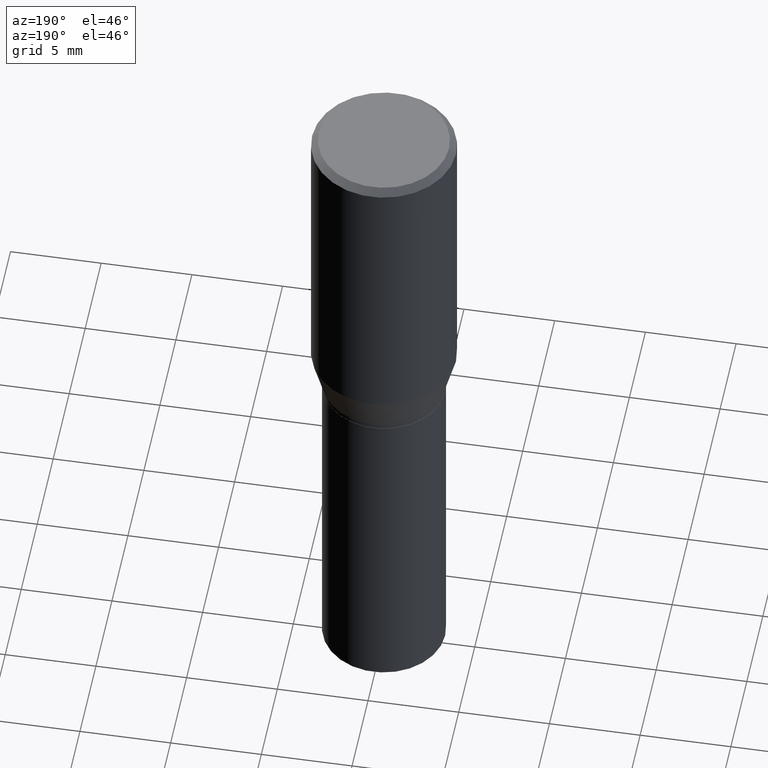
[diagram: clean part render]
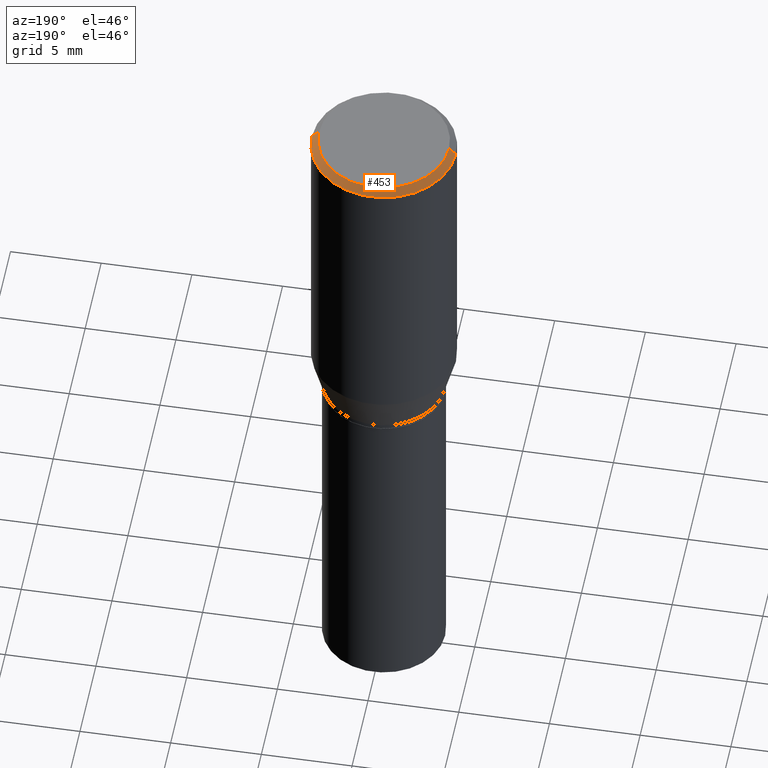
[diagram: same view with one face highlighted and labeled with its STEP entity id]
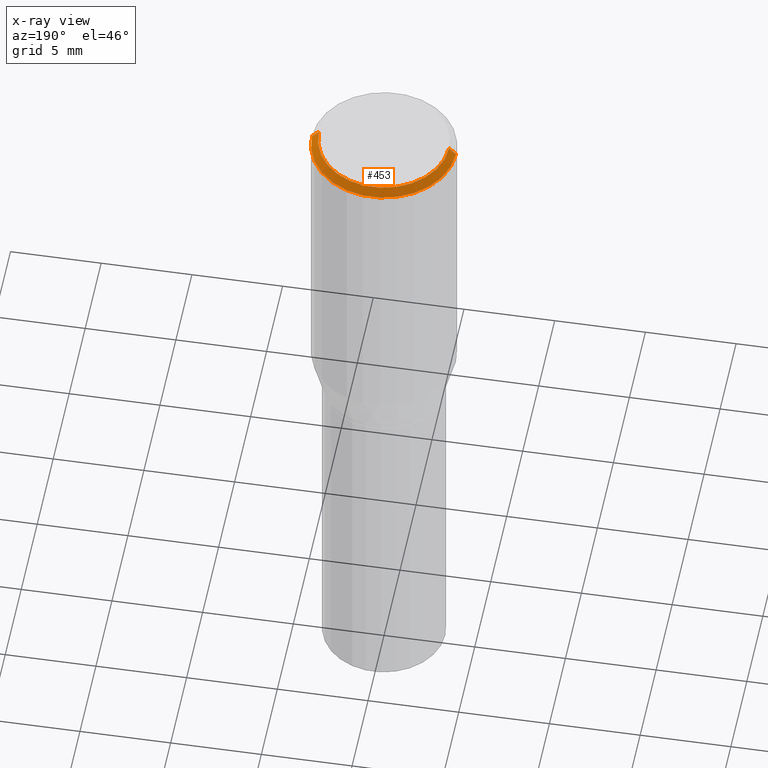
[diagram: x-ray of the same camera — body ghosted, the highlighted face saturated]
A machine part, auxiliary view. The second image highlights one B-rep face of the part: STEP entity #453.
The next image is the same camera in x-ray: the body ghosted, the highlighted face saturated — about 0% of this face is hidden behind the body in this view.
In plain terms, the highlighted conical surface has half-angle 45 deg.
Its self-contained STEP definition (entity closure, byte-faithful):
#4 = LINE ( 'NONE', #144, #257 ) ;
#24 = AXIS2_PLACEMENT_3D ( 'NONE', #143, #388, #175 ) ;
#58 = ORIENTED_EDGE ( 'NONE', *, *, #397, .F. ) ;
#60 = ORIENTED_EDGE ( 'NONE', *, *, #464, .T. ) ;
#67 = DIRECTION ( 'NONE',  ( -2.445468806185136597E-29, 3.491481338843145583E-15, 1.000000000000000000 ) ) ;
#79 = CARTESIAN_POINT ( 'NONE',  ( -0.1562500000000000000, 1.038715698305832094E-15, -0.01499999999999999944 ) ) ;
#91 = VERTEX_POINT ( 'NONE', #203 ) ;
#97 = FACE_OUTER_BOUND ( 'NONE', #342, .T. ) ;
#99 = CARTESIAN_POINT ( 'NONE',  ( 3.668203209277705088E-31, -5.237222008264718399E-17, -0.01499999999999999944 ) ) ;
#108 = DIRECTION ( 'NONE',  ( 0.7071067811865483499, -7.319954787623257623E-15, -0.7071067811865466846 ) ) ;
#113 = DIRECTION ( 'NONE',  ( -0.7071067811865483499, 2.468850131082265738E-15, -0.7071067811865466846 ) ) ;
#142 = EDGE_CURVE ( 'NONE', #91, #234, #4, .T. ) ;
#143 = CARTESIAN_POINT ( 'NONE',  ( 1.066899386337773103E-45, -1.523249566054587316E-31, -4.362760153142606033E-17 ) ) ;
#144 = CARTESIAN_POINT ( 'NONE',  ( 0.1562500000000000000, -1.124325032234449083E-15, -0.01499999999999999944 ) ) ;
#157 = CIRCLE ( 'NONE', #24, 0.1412500000000000144 ) ;
#163 = ORIENTED_EDGE ( 'NONE', *, *, #142, .T. ) ;
#167 = VECTOR ( 'NONE', #113, 39.37007874015748143 ) ;
#169 = CONICAL_SURFACE ( 'NONE', #311, 0.1562500000000000000, 0.7853981633974495002 ) ;
#175 = DIRECTION ( 'NONE',  ( 1.000000000000000000, -6.982962677686265922E-15, 4.874209154772796007E-29 ) ) ;
#203 = CARTESIAN_POINT ( 'NONE',  ( 0.1412500000000000144, -1.046685187209839144E-15, -4.362760153141894826E-17 ) ) ;
#218 = CARTESIAN_POINT ( 'NONE',  ( -0.1562500000000000000, -5.502990786655347834E-17, -0.01499999999999999944 ) ) ;
#226 = AXIS2_PLACEMENT_3D ( 'NONE', #99, #67, #354 ) ;
#231 = EDGE_CURVE ( 'NONE', #381, #232, #440, .T. ) ;
#232 = VERTEX_POINT ( 'NONE', #218 ) ;
#234 = VERTEX_POINT ( 'NONE', #252 ) ;
#236 = DIRECTION ( 'NONE',  ( 2.445468806185136597E-29, -3.491481338843145583E-15, -1.000000000000000000 ) ) ;
#252 = CARTESIAN_POINT ( 'NONE',  ( 0.1562500000000000000, -1.143460138471126253E-15, -0.01499999999999999944 ) ) ;
#257 = VECTOR ( 'NONE', #108, 39.37007874015748143 ) ;
#311 = AXIS2_PLACEMENT_3D ( 'NONE', #358, #236, #390 ) ;
#322 = CARTESIAN_POINT ( 'NONE',  ( -0.1412500000000000144, 1.012529588264508555E-15, -4.362760153143304915E-17 ) ) ;
#342 = EDGE_LOOP ( 'NONE', ( #58, #163, #60, #450 ) ) ;
#354 = DIRECTION ( 'NONE',  ( 1.000000000000000000, -6.982962677686266711E-15, 0.000000000000000000 ) ) ;
#358 = CARTESIAN_POINT ( 'NONE',  ( 3.668203209277705088E-31, -5.237222008264718399E-17, -0.01499999999999999944 ) ) ;
#381 = VERTEX_POINT ( 'NONE', #322 ) ;
#388 = DIRECTION ( 'NONE',  ( -2.445468806185136597E-29, 3.491481338843145583E-15, 1.000000000000000000 ) ) ;
#390 = DIRECTION ( 'NONE',  ( -1.000000000000000000, 6.982962677686266711E-15, 0.000000000000000000 ) ) ;
#397 = EDGE_CURVE ( 'NONE', #91, #381, #157, .T. ) ;
#436 = CIRCLE ( 'NONE', #226, 0.1562500000000000000 ) ;
#440 = LINE ( 'NONE', #79, #167 ) ;
#450 = ORIENTED_EDGE ( 'NONE', *, *, #231, .F. ) ;
#453 = ADVANCED_FACE ( 'NONE', ( #97 ), #169, .T. ) ;
#464 = EDGE_CURVE ( 'NONE', #234, #232, #436, .T. ) ;